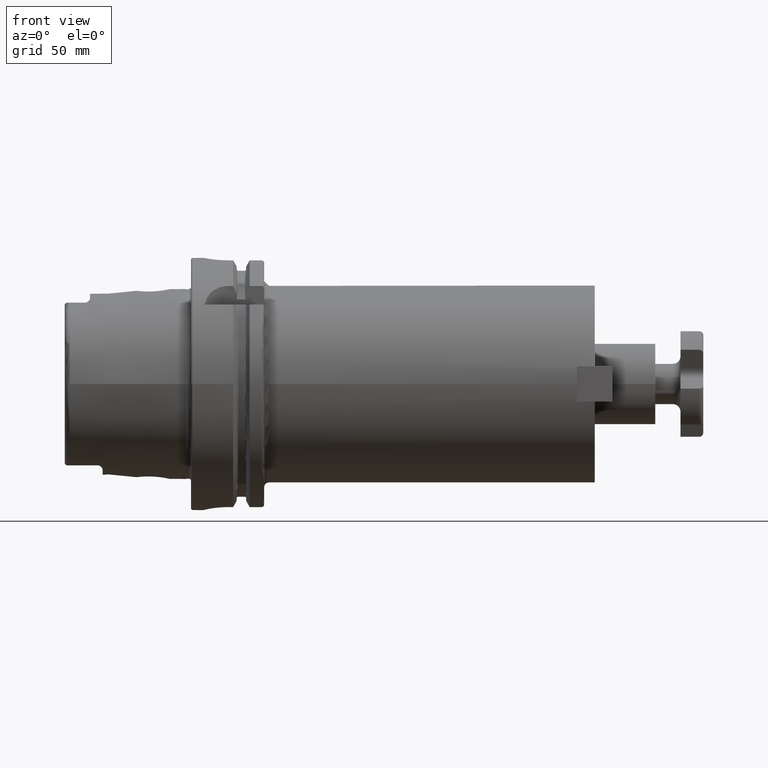
[diagram: clean part render]
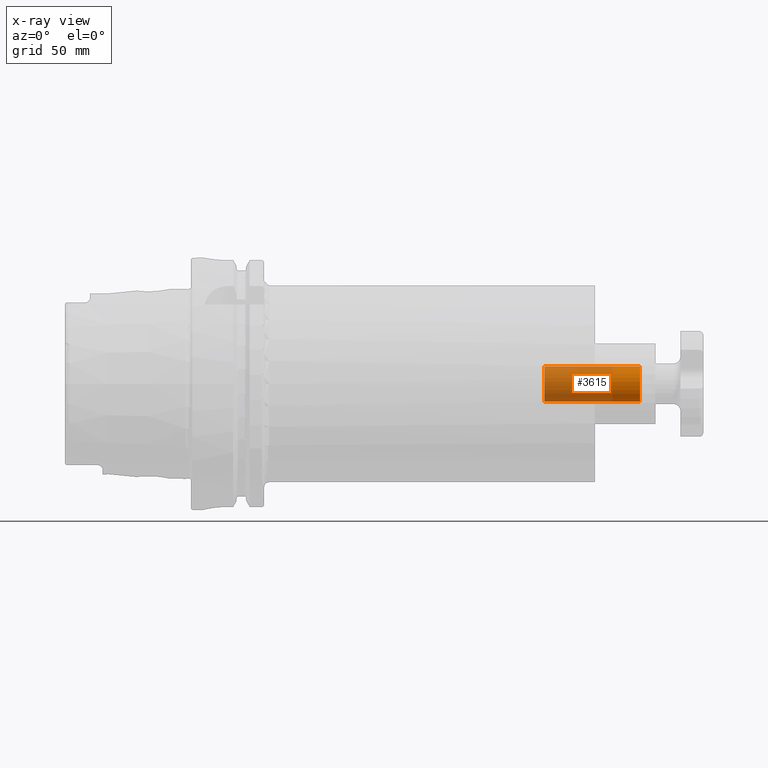
[diagram: x-ray — body ghosted, one internal face saturated and labeled with its STEP entity id]
A machine part, front view, then the same camera in x-ray: the body is ghosted and one INTERNAL B-rep face — a face not visible from any outside direction — is saturated and labeled: STEP entity #3615.
In plain terms, the highlighted cylindrical surface (bore or boss wall) has radius 6.9175 mm, axis along (1, 0, 0).
Its self-contained STEP definition (entity closure, byte-faithful):
#797=CYLINDRICAL_SURFACE('',#3991,6.9175);
#869=FACE_OUTER_BOUND('',#1055,.T.);
#1055=EDGE_LOOP('',(#2742,#2743,#2744,#2745));
#1272=LINE('',#5685,#1464);
#1464=VECTOR('',#4562,6.9175);
#1648=CIRCLE('',#3990,6.9175);
#1649=CIRCLE('',#3992,6.9175);
#1895=VERTEX_POINT('',#5679);
#1896=VERTEX_POINT('',#5683);
#2223=EDGE_CURVE('',#1895,#1895,#1648,.T.);
#2225=EDGE_CURVE('',#1896,#1896,#1649,.T.);
#2226=EDGE_CURVE('',#1896,#1895,#1272,.T.);
#2742=ORIENTED_EDGE('',*,*,#2225,.F.);
#2743=ORIENTED_EDGE('',*,*,#2226,.T.);
#2744=ORIENTED_EDGE('',*,*,#2223,.F.);
#2745=ORIENTED_EDGE('',*,*,#2226,.F.);
#3615=ADVANCED_FACE('',(#869),#797,.F.);
#3990=AXIS2_PLACEMENT_3D('',#5680,#4555,#4556);
#3991=AXIS2_PLACEMENT_3D('',#5682,#4558,#4559);
#3992=AXIS2_PLACEMENT_3D('',#5684,#4560,#4561);
#4555=DIRECTION('center_axis',(1.,0.,0.));
#4556=DIRECTION('ref_axis',(0.,0.,-1.));
#4558=DIRECTION('center_axis',(1.,0.,0.));
#4559=DIRECTION('ref_axis',(0.,0.,-1.));
#4560=DIRECTION('center_axis',(-1.,0.,0.));
#4561=DIRECTION('ref_axis',(0.,0.,-1.));
#4562=DIRECTION('',(-1.,0.,0.));
#5679=CARTESIAN_POINT('',(140.,-8.47149423310182E-16,6.9175));
#5680=CARTESIAN_POINT('Origin',(140.,0.,0.));
#5682=CARTESIAN_POINT('Origin',(162.,0.,0.));
#5683=CARTESIAN_POINT('',(178.,8.47149423310182E-16,6.9175));
#5684=CARTESIAN_POINT('Origin',(178.,0.,0.));
#5685=CARTESIAN_POINT('',(162.,-8.47149423310182E-16,6.9175));